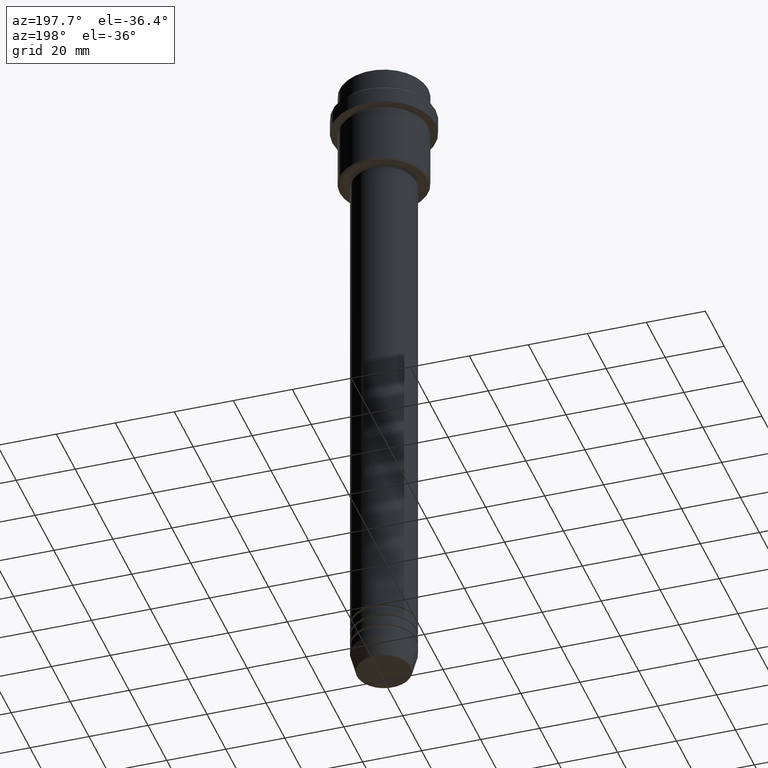
[diagram: clean part render]
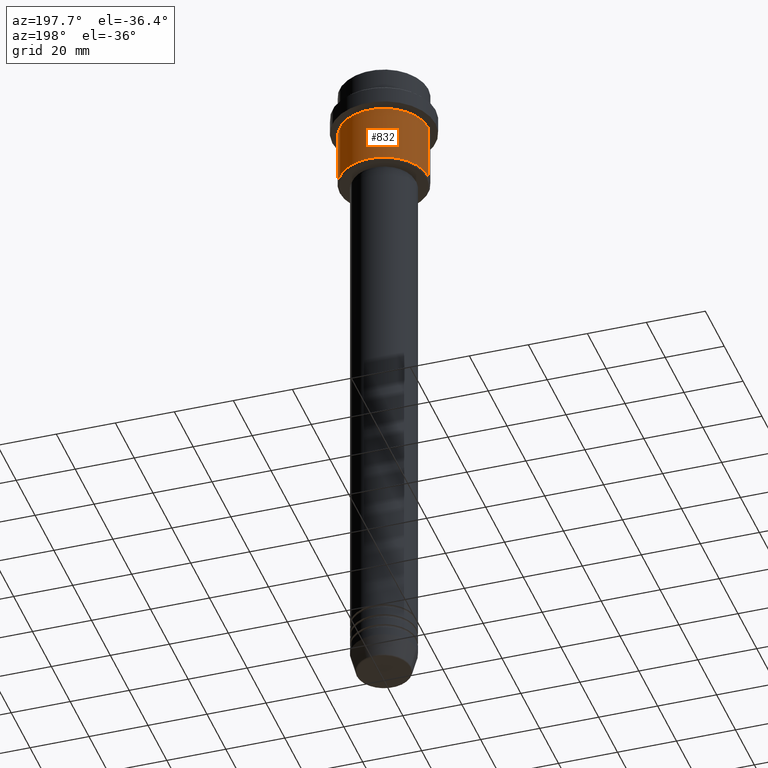
[diagram: same view with one face highlighted and labeled with its STEP entity id]
A machine part, auxiliary view. The second image highlights one B-rep face of the part: STEP entity #832.
In plain terms, the highlighted cylindrical surface (partial cylindrical patch) has radius 15 mm, axis along (-0, -0, 1).
Its self-contained STEP definition (entity closure, byte-faithful):
#23 = AXIS2_PLACEMENT_3D ( 'NONE', #959, #1280, #300 ) ;
#78 = DIRECTION ( 'NONE',  ( 1.000000000000000000, 0.000000000000000000, 0.000000000000000000 ) ) ;
#86 = AXIS2_PLACEMENT_3D ( 'NONE', #855, #641, #1073 ) ;
#124 = VERTEX_POINT ( 'NONE', #1233 ) ;
#209 = EDGE_CURVE ( 'NONE', #386, #124, #1251, .T. ) ;
#252 = CARTESIAN_POINT ( 'NONE',  ( 15.00000000000000000, 0.000000000000000000, 0.000000000000000000 ) ) ;
#296 = EDGE_LOOP ( 'NONE', ( #1246, #822, #1137, #326 ) ) ;
#300 = DIRECTION ( 'NONE',  ( -1.000000000000000000, 0.000000000000000000, 0.000000000000000000 ) ) ;
#326 = ORIENTED_EDGE ( 'NONE', *, *, #517, .F. ) ;
#356 = LINE ( 'NONE', #252, #726 ) ;
#386 = VERTEX_POINT ( 'NONE', #642 ) ;
#426 = CARTESIAN_POINT ( 'NONE',  ( -15.00000000000000355, 1.836970198721029983E-15, -16.00000000000000000 ) ) ;
#517 = EDGE_CURVE ( 'NONE', #386, #1397, #356, .T. ) ;
#591 = CIRCLE ( 'NONE', #1392, 15.00000000000000178 ) ;
#599 = CARTESIAN_POINT ( 'NONE',  ( -15.00000000000000000, 1.836970198721029589E-15, 0.000000000000000000 ) ) ;
#641 = DIRECTION ( 'NONE',  ( -0.000000000000000000, -0.000000000000000000, 1.000000000000000000 ) ) ;
#642 = CARTESIAN_POINT ( 'NONE',  ( 15.00000000000000000, 0.000000000000000000, -35.49999999999997158 ) ) ;
#702 = LINE ( 'NONE', #599, #1133 ) ;
#726 = VECTOR ( 'NONE', #1130, 1000.000000000000000 ) ;
#729 = CARTESIAN_POINT ( 'NONE',  ( 0.000000000000000000, 0.000000000000000000, -16.00000000000000000 ) ) ;
#731 = DIRECTION ( 'NONE',  ( -0.000000000000000000, -0.000000000000000000, 1.000000000000000000 ) ) ;
#822 = ORIENTED_EDGE ( 'NONE', *, *, #1111, .T. ) ;
#832 = ADVANCED_FACE ( 'NONE', ( #1319 ), #1206, .T. ) ;
#855 = CARTESIAN_POINT ( 'NONE',  ( 0.000000000000000000, 0.000000000000000000, 0.000000000000000000 ) ) ;
#876 = VERTEX_POINT ( 'NONE', #426 ) ;
#959 = CARTESIAN_POINT ( 'NONE',  ( 0.000000000000000000, 0.000000000000000000, -35.49999999999997158 ) ) ;
#1073 = DIRECTION ( 'NONE',  ( 1.000000000000000000, 0.000000000000000000, 0.000000000000000000 ) ) ;
#1111 = EDGE_CURVE ( 'NONE', #124, #876, #702, .T. ) ;
#1130 = DIRECTION ( 'NONE',  ( -0.000000000000000000, -0.000000000000000000, 1.000000000000000000 ) ) ;
#1133 = VECTOR ( 'NONE', #731, 1000.000000000000000 ) ;
#1137 = ORIENTED_EDGE ( 'NONE', *, *, #1362, .F. ) ;
#1148 = CARTESIAN_POINT ( 'NONE',  ( 15.00000000000000178, 0.000000000000000000, -16.00000000000000000 ) ) ;
#1172 = DIRECTION ( 'NONE',  ( -0.000000000000000000, -0.000000000000000000, 1.000000000000000000 ) ) ;
#1206 = CYLINDRICAL_SURFACE ( 'NONE', #86, 15.00000000000000000 ) ;
#1233 = CARTESIAN_POINT ( 'NONE',  ( -15.00000000000000000, 1.836970198721029589E-15, -35.49999999999997158 ) ) ;
#1246 = ORIENTED_EDGE ( 'NONE', *, *, #209, .T. ) ;
#1251 = CIRCLE ( 'NONE', #23, 15.00000000000000000 ) ;
#1280 = DIRECTION ( 'NONE',  ( -0.000000000000000000, -0.000000000000000000, 1.000000000000000000 ) ) ;
#1319 = FACE_OUTER_BOUND ( 'NONE', #296, .T. ) ;
#1362 = EDGE_CURVE ( 'NONE', #1397, #876, #591, .T. ) ;
#1392 = AXIS2_PLACEMENT_3D ( 'NONE', #729, #1172, #78 ) ;
#1397 = VERTEX_POINT ( 'NONE', #1148 ) ;